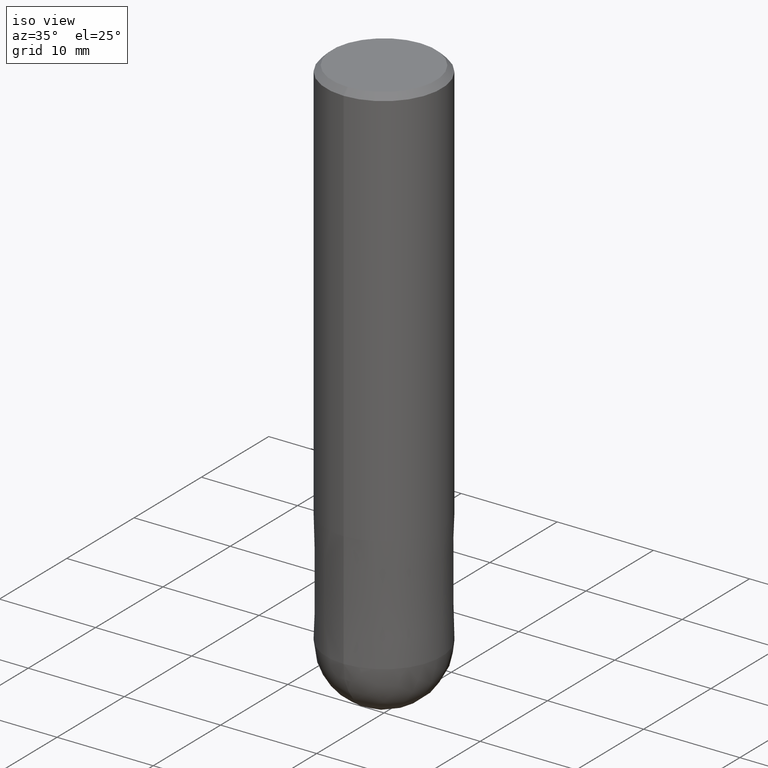
[diagram: clean part render]
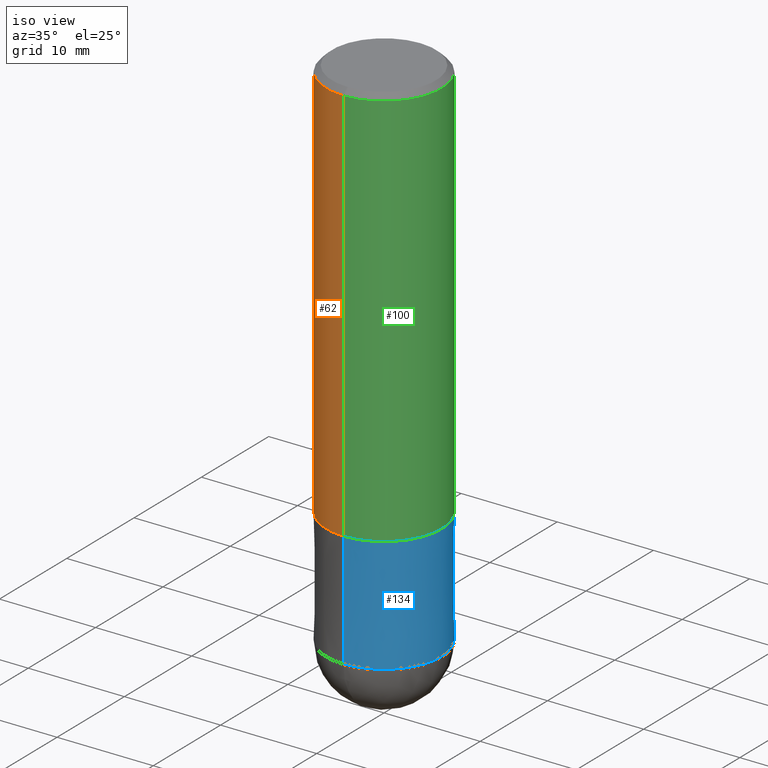
[diagram: same view with three faces highlighted in distinct colors, each labeled with its STEP entity id]
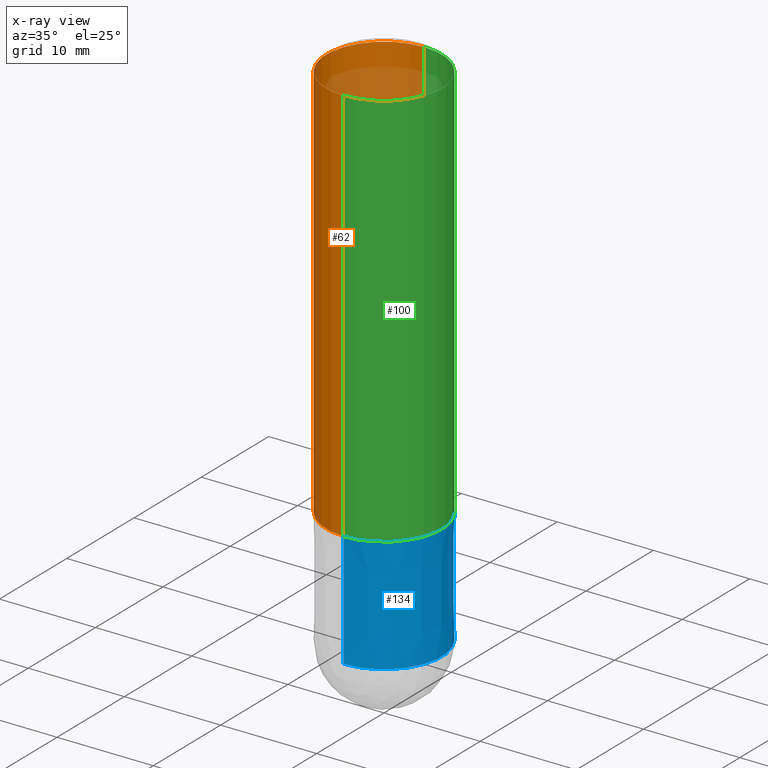
[diagram: x-ray of the same camera — body ghosted, the three highlighted faces saturated]
A machine part, iso view with three faces highlighted in distinct colors.
The next image is the same camera in x-ray (body ghosted, the three faces saturated) — at least one of them is partly hidden behind the body in this view.
Their STEP definitions:

[orange] entity #62 — the highlighted cylindrical surface (partial cylindrical patch) has radius 6 mm, axis along (-0, -0, 1).
#62=ADVANCED_FACE('',(#154),#155,.T.);
#74=VERTEX_POINT('',#170);
#86=VERTEX_POINT('',#184);
#88=VERTEX_POINT('',#186);
#94=VERTEX_POINT('',#192);
#118=EDGE_CURVE('',#74,#88,#218,.T.);
#120=EDGE_CURVE('',#94,#86,#220,.T.);
#128=EDGE_CURVE('',#74,#86,#229,.T.);
#132=EDGE_CURVE('',#88,#94,#233,.T.);
#154=FACE_OUTER_BOUND('',#247,.T.);
#155=CYLINDRICAL_SURFACE('',#248,6.0);
#170=CARTESIAN_POINT('',(7.34763812293426E-016,-6.0,-42.0));
#184=CARTESIAN_POINT('',(0.0,6.0,-42.0));
#186=CARTESIAN_POINT('',(7.34763812293426E-016,-6.0,-0.600000000000001));
#192=CARTESIAN_POINT('',(0.0,6.0,-0.600000000000001));
#218=LINE('',#325,#326);
#220=LINE('',#329,#330);
#229=CIRCLE('',#341,6.0);
#233=CIRCLE('',#348,6.0);
#247=EDGE_LOOP('',(#357,#358,#359,#360));
#248=AXIS2_PLACEMENT_3D('',#361,#362,#363);
#325=CARTESIAN_POINT('',(7.34763812293426E-016,-6.0,-21.3));
#326=VECTOR('',#436,1.0);
#329=CARTESIAN_POINT('',(-7.34763812293426E-016,6.0,-21.3));
#330=VECTOR('',#437,1.0);
#341=AXIS2_PLACEMENT_3D('',#447,#448,#449);
#348=AXIS2_PLACEMENT_3D('',#451,#452,#453);
#357=ORIENTED_EDGE('',*,*,#120,.T.);
#358=ORIENTED_EDGE('',*,*,#128,.F.);
#359=ORIENTED_EDGE('',*,*,#118,.T.);
#360=ORIENTED_EDGE('',*,*,#132,.T.);
#361=CARTESIAN_POINT('',(0.0,0.0,-21.3));
#362=DIRECTION('',(-0.0,-0.0,1.0));
#363=DIRECTION('',(0.0,1.0,0.0));
#436=DIRECTION('',(-0.0,-0.0,1.0));
#437=DIRECTION('',(0.0,0.0,-1.0));
#447=CARTESIAN_POINT('',(0.0,0.0,-42.0));
#448=DIRECTION('',(0.0,0.0,-1.0));
#449=DIRECTION('',(0.0,1.0,0.0));
#451=CARTESIAN_POINT('',(0.0,0.0,-0.600000000000001));
#452=DIRECTION('',(0.0,0.0,-1.0));
#453=DIRECTION('',(0.0,1.0,0.0));

[blue] entity #134 — the highlighted conical surface has half-angle 0 deg.
#70=EDGE_CURVE('',#126,#110,#166,.T.);
#78=VERTEX_POINT('',#174);
#98=EDGE_CURVE('',#126,#78,#196,.T.);
#110=VERTEX_POINT('',#210);
#116=VERTEX_POINT('',#216);
#122=EDGE_CURVE('',#110,#116,#222,.T.);
#126=VERTEX_POINT('',#227);
#130=EDGE_CURVE('',#116,#78,#231,.T.);
#134=ADVANCED_FACE('',(#235),#236,.T.);
#166=LINE('',#260,#261);
#174=CARTESIAN_POINT('',(7.34751566229888E-016,-5.9999,-42.0));
#196=CIRCLE('',#296,5.9999);
#210=CARTESIAN_POINT('',(0.0,6.0,-54.0));
#216=CARTESIAN_POINT('',(7.34763812293426E-016,-6.0,-54.0));
#222=CIRCLE('',#333,6.0);
#227=CARTESIAN_POINT('',(0.0,5.9999,-42.0));
#231=LINE('',#344,#345);
#235=FACE_OUTER_BOUND('',#350,.T.);
#236=CONICAL_SURFACE('',#351,5.99995,8.33333333319503E-006);
#260=CARTESIAN_POINT('',(-7.34757689261657E-016,5.99995,-48.0));
#261=VECTOR('',#380,1.0);
#296=AXIS2_PLACEMENT_3D('',#406,#407,#408);
#333=AXIS2_PLACEMENT_3D('',#438,#439,#440);
#344=CARTESIAN_POINT('',(7.34757689261657E-016,-5.99995,-48.0));
#345=VECTOR('',#450,1.0);
#350=EDGE_LOOP('',(#455,#456,#457,#458));
#351=AXIS2_PLACEMENT_3D('',#459,#460,#461);
#380=DIRECTION('',(-1.02050529482323E-021,8.33333333309857E-006,-0.999999999965278));
#406=CARTESIAN_POINT('',(0.0,0.0,-42.0));
#407=DIRECTION('',(0.0,0.0,-1.0));
#408=DIRECTION('',(0.0,1.0,0.0));
#438=CARTESIAN_POINT('',(0.0,0.0,-54.0));
#439=DIRECTION('',(0.0,0.0,-1.0));
#440=DIRECTION('',(0.0,1.0,0.0));
#450=DIRECTION('',(-1.02050529482323E-021,8.33333333309857E-006,0.999999999965278));
#455=ORIENTED_EDGE('',*,*,#70,.F.);
#456=ORIENTED_EDGE('',*,*,#98,.T.);
#457=ORIENTED_EDGE('',*,*,#130,.F.);
#458=ORIENTED_EDGE('',*,*,#122,.F.);
#459=CARTESIAN_POINT('',(0.0,0.0,-48.0));
#460=DIRECTION('',(0.0,-0.0,-1.0));
#461=DIRECTION('',(0.0,1.0,0.0));

[green] entity #100 — the highlighted cylindrical surface (partial cylindrical patch) has radius 6 mm, axis along (-0, -0, 1).
#74=VERTEX_POINT('',#170);
#86=VERTEX_POINT('',#184);
#88=VERTEX_POINT('',#186);
#90=EDGE_CURVE('',#94,#88,#188,.T.);
#94=VERTEX_POINT('',#192);
#100=ADVANCED_FACE('',(#198),#199,.T.);
#102=EDGE_CURVE('',#86,#74,#201,.T.);
#118=EDGE_CURVE('',#74,#88,#218,.T.);
#120=EDGE_CURVE('',#94,#86,#220,.T.);
#170=CARTESIAN_POINT('',(7.34763812293426E-016,-6.0,-42.0));
#184=CARTESIAN_POINT('',(0.0,6.0,-42.0));
#186=CARTESIAN_POINT('',(7.34763812293426E-016,-6.0,-0.600000000000001));
#188=CIRCLE('',#286,6.0);
#192=CARTESIAN_POINT('',(0.0,6.0,-0.600000000000001));
#198=FACE_OUTER_BOUND('',#298,.T.);
#199=CYLINDRICAL_SURFACE('',#299,6.0);
#201=CIRCLE('',#302,6.0);
#218=LINE('',#325,#326);
#220=LINE('',#329,#330);
#286=AXIS2_PLACEMENT_3D('',#400,#401,#402);
#298=EDGE_LOOP('',(#410,#411,#412,#413));
#299=AXIS2_PLACEMENT_3D('',#414,#415,#416);
#302=AXIS2_PLACEMENT_3D('',#417,#418,#419);
#325=CARTESIAN_POINT('',(7.34763812293426E-016,-6.0,-21.3));
#326=VECTOR('',#436,1.0);
#329=CARTESIAN_POINT('',(-7.34763812293426E-016,6.0,-21.3));
#330=VECTOR('',#437,1.0);
#400=CARTESIAN_POINT('',(0.0,0.0,-0.600000000000001));
#401=DIRECTION('',(0.0,0.0,-1.0));
#402=DIRECTION('',(0.0,1.0,0.0));
#410=ORIENTED_EDGE('',*,*,#120,.F.);
#411=ORIENTED_EDGE('',*,*,#90,.T.);
#412=ORIENTED_EDGE('',*,*,#118,.F.);
#413=ORIENTED_EDGE('',*,*,#102,.F.);
#414=CARTESIAN_POINT('',(0.0,0.0,-21.3));
#415=DIRECTION('',(-0.0,-0.0,1.0));
#416=DIRECTION('',(0.0,1.0,0.0));
#417=CARTESIAN_POINT('',(0.0,0.0,-42.0));
#418=DIRECTION('',(0.0,0.0,-1.0));
#419=DIRECTION('',(0.0,1.0,0.0));
#436=DIRECTION('',(-0.0,-0.0,1.0));
#437=DIRECTION('',(0.0,0.0,-1.0));